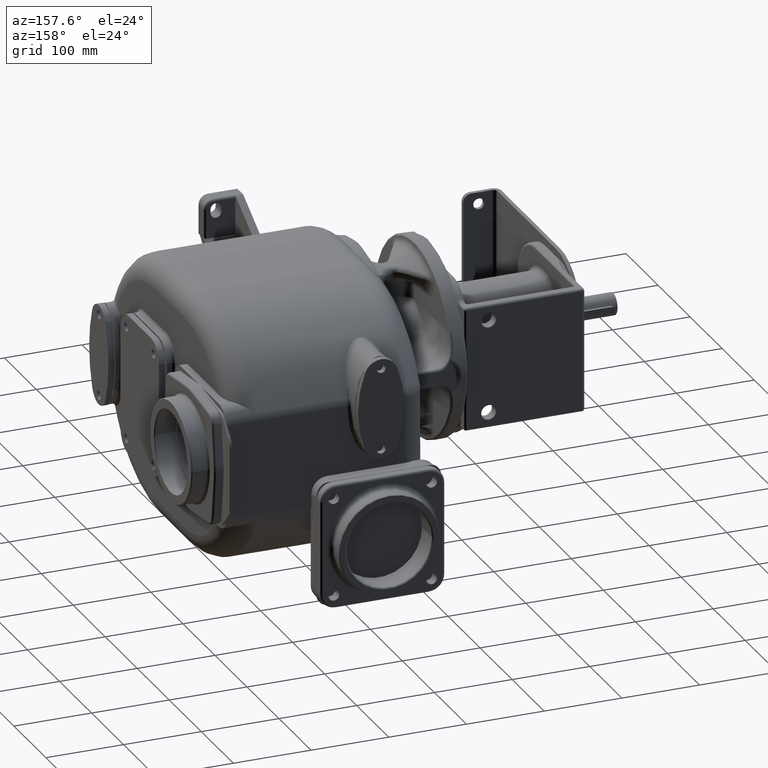
[diagram: clean part render]
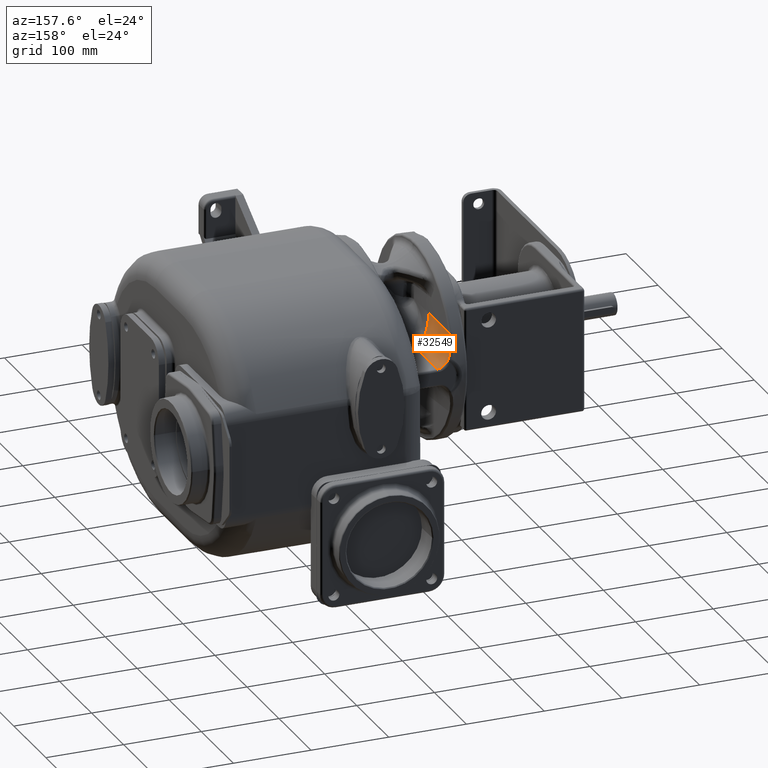
[diagram: same view with one face highlighted and labeled with its STEP entity id]
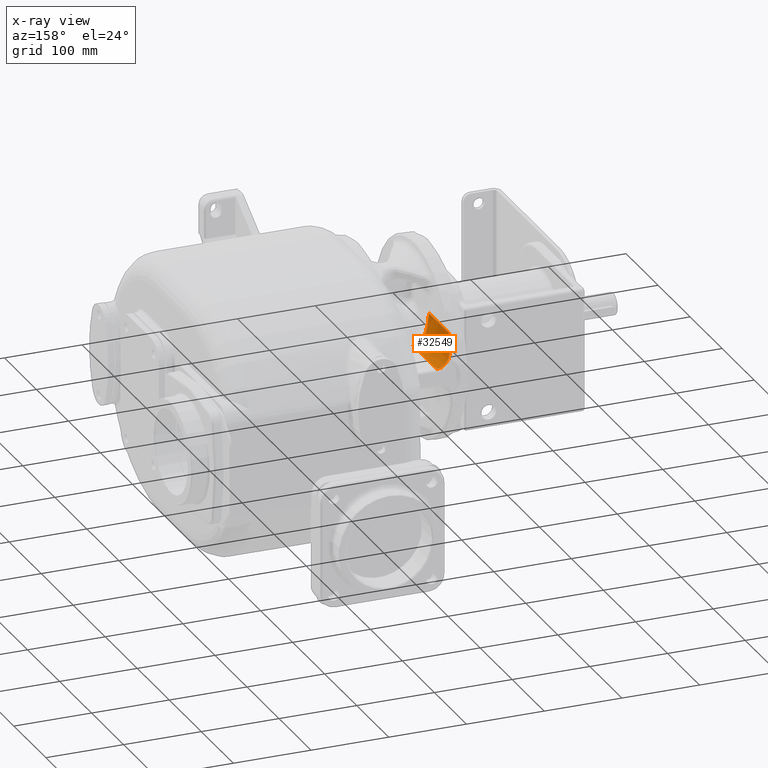
[diagram: x-ray of the same camera — body ghosted, the highlighted face saturated]
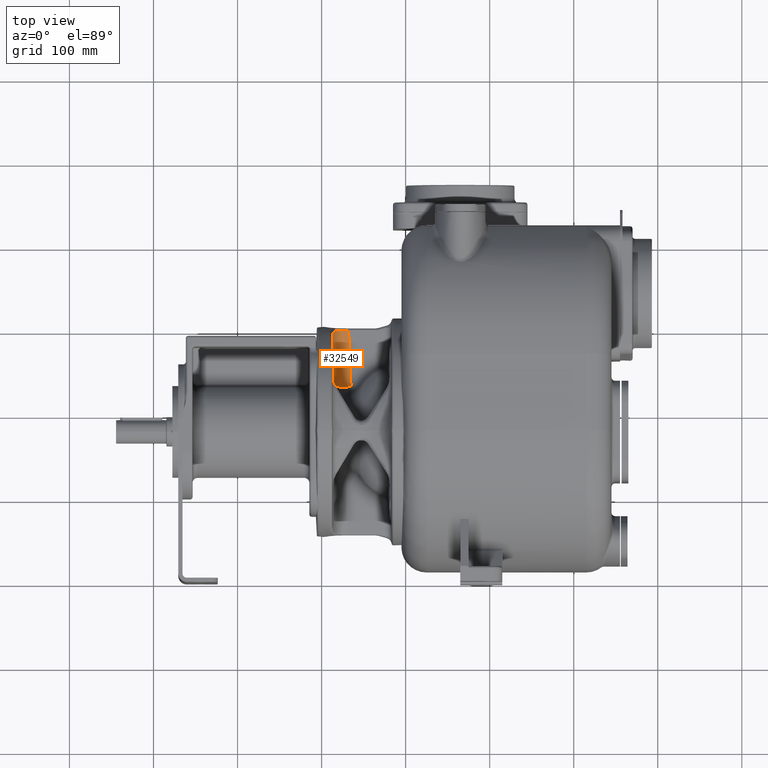
[diagram: same view with one face highlighted and labeled with its STEP entity id]
A machine part, auxiliary view. The second image highlights one B-rep face of the part: STEP entity #32549.
The next image is the same camera in x-ray: the body ghosted, the highlighted face saturated — about 0% of this face is hidden behind the body in this view.
A second angle (top view) of the same face is appended — the face is thin or edge-on in the first view.
In plain terms, the highlighted face is a freeform B-spline surface patch.
Its self-contained STEP definition (entity closure, byte-faithful):
#43=CARTESIAN_POINT('',(-1.849642544333E2,2.344774130516E2,5.387099244443E1));
#115=CARTESIAN_POINT('',(-1.700026951535E2,2.329926642686E2,1.550029634444E1));
#784=CARTESIAN_POINT('',(-1.815004487016E2,3.002087586596E2,1.938806853453E1));
#785=CARTESIAN_POINT('',(-1.813797151418E2,3.002093023329E2,1.918530023571E1));
#786=CARTESIAN_POINT('',(-1.811371634889E2,3.002103387973E2,1.879124872940E1));
#787=CARTESIAN_POINT('',(-1.807711934695E2,3.002117257564E2,1.823404023452E1));
#788=CARTESIAN_POINT('',(-1.804033957776E2,3.002129352064E2,1.770887215943E1));
#789=CARTESIAN_POINT('',(-1.800340977026E2,3.002139586463E2,1.721410746469E1));
#790=CARTESIAN_POINT('',(-1.796634159604E2,3.002147874221E2,1.674797237411E1));
#791=CARTESIAN_POINT('',(-1.792913154828E2,3.002154152648E2,1.630869671079E1));
#792=CARTESIAN_POINT('',(-1.789176179962E2,3.002158365640E2,1.589454630493E1));
#793=CARTESIAN_POINT('',(-1.785419673385E2,3.002160441825E2,1.550380770355E1));
#794=CARTESIAN_POINT('',(-1.781638673181E2,3.002160347467E2,1.513486386363E1));
#795=CARTESIAN_POINT('',(-1.777832445819E2,3.002158011562E2,1.478669522918E1));
#796=CARTESIAN_POINT('',(-1.773999075990E2,3.002153417012E2,1.445827560923E1));
#797=CARTESIAN_POINT('',(-1.770135565905E2,3.002146518236E2,1.414861202406E1));
#798=CARTESIAN_POINT('',(-1.766237905822E2,3.002137305708E2,1.385676401242E1));
#799=CARTESIAN_POINT('',(-1.762303058700E2,3.002125768145E2,1.358198714451E1));
#800=CARTESIAN_POINT('',(-1.758327119697E2,3.002111899270E2,1.332357861232E1));
#801=CARTESIAN_POINT('',(-1.754305455562E2,3.002095731919E2,1.308089819765E1));
#802=CARTESIAN_POINT('',(-1.750232744471E2,3.002077249354E2,1.285337750130E1));
#803=CARTESIAN_POINT('',(-1.746103946765E2,3.002056528373E2,1.264057102739E1));
#804=CARTESIAN_POINT('',(-1.741913560971E2,3.002033564837E2,1.244210769070E1));
#805=CARTESIAN_POINT('',(-1.737655762279E2,3.002008448242E2,1.225769823159E1));
#806=CARTESIAN_POINT('',(-1.733324519837E2,3.001981222791E2,1.208713864228E1));
#807=CARTESIAN_POINT('',(-1.728913212171E2,3.001951960448E2,1.193029461768E1));
#808=CARTESIAN_POINT('',(-1.724415228937E2,3.001920764967E2,1.178712449416E1));
#809=CARTESIAN_POINT('',(-1.719824080761E2,3.001887701914E2,1.165767747511E1));
#810=CARTESIAN_POINT('',(-1.715133560464E2,3.001852926599E2,1.154208378788E1));
#811=CARTESIAN_POINT('',(-1.710333094083E2,3.001816481841E2,1.144046047109E1));
#812=CARTESIAN_POINT('',(-1.705412383298E2,3.001778520152E2,1.135305898099E1));
#813=CARTESIAN_POINT('',(-1.700361544283E2,3.001739121150E2,1.128025152646E1));
#814=CARTESIAN_POINT('',(-1.695171070584E2,3.001698430424E2,1.122252004111E1));
#815=CARTESIAN_POINT('',(-1.689832412977E2,3.001656605077E2,1.118044825583E1));
#816=CARTESIAN_POINT('',(-1.684337909559E2,3.001613774907E2,1.115470577798E1));
#817=CARTESIAN_POINT('',(-1.680568191662E2,3.001584712130E2,1.114891853659E1));
#818=CARTESIAN_POINT('',(-1.678655197267E2,3.001570078687E2,1.114899490412E1));
#820=CARTESIAN_POINT('',(-1.700177710151E2,2.329948751001E2,1.550553421383E1));
#821=CARTESIAN_POINT('',(-1.698834687265E2,2.330331748299E2,1.545485863269E1));
#822=CARTESIAN_POINT('',(-1.696125427580E2,2.331103244067E2,1.535755232332E1));
#823=CARTESIAN_POINT('',(-1.691993582268E2,2.332275007651E2,1.522393291781E1));
#824=CARTESIAN_POINT('',(-1.687783053616E2,2.333463762247E2,1.510248772657E1));
#825=CARTESIAN_POINT('',(-1.683485060417E2,2.334666043713E2,1.499328341822E1));
#826=CARTESIAN_POINT('',(-1.679095613974E2,2.335899732249E2,1.489644353246E1));
#827=CARTESIAN_POINT('',(-1.674606631406E2,2.337168867957E2,1.481215262233E1));
#828=CARTESIAN_POINT('',(-1.670009530775E2,2.338474453453E2,1.474069911086E1));
#829=CARTESIAN_POINT('',(-1.665296149726E2,2.339816629418E2,1.468247261479E1));
#830=CARTESIAN_POINT('',(-1.660461455830E2,2.341206898534E2,1.463789847774E1));
#831=CARTESIAN_POINT('',(-1.655497423830E2,2.342645911820E2,1.460749426770E1));
#832=CARTESIAN_POINT('',(-1.652097599663E2,2.343638256649E2,1.459707030997E1));
#833=CARTESIAN_POINT('',(-1.650374075172E2,2.344142901760E2,1.459442474243E1));
#835=CARTESIAN_POINT('',(-1.700177710151E2,2.329948751001E2,1.550553421383E1));
#836=CARTESIAN_POINT('',(-1.701553511323E2,2.329921604677E2,1.555503217322E1));
#837=CARTESIAN_POINT('',(-1.704313613278E2,2.329872738945E2,1.565930180824E1));
#838=CARTESIAN_POINT('',(-1.708513092268E2,2.329823138521E2,1.583410294758E1));
#839=CARTESIAN_POINT('',(-1.712640953007E2,2.329777593557E2,1.602260672891E1));
#840=CARTESIAN_POINT('',(-1.716731801270E2,2.329741522104E2,1.622630632232E1));
#841=CARTESIAN_POINT('',(-1.720775511952E2,2.329713587798E2,1.644502177232E1));
#842=CARTESIAN_POINT('',(-1.724776945686E2,2.329694711193E2,1.667920206500E1));
#843=CARTESIAN_POINT('',(-1.728737900786E2,2.329685667124E2,1.692924313225E1));
#844=CARTESIAN_POINT('',(-1.732662948014E2,2.329686788012E2,1.719577573793E1));
#845=CARTESIAN_POINT('',(-1.736557633459E2,2.329697945456E2,1.747963316031E1));
#846=CARTESIAN_POINT('',(-1.740426088244E2,2.329719400766E2,1.778168196810E1));
#847=CARTESIAN_POINT('',(-1.744271116026E2,2.329751752171E2,1.810280516409E1));
#848=CARTESIAN_POINT('',(-1.748095489966E2,2.329795533071E2,1.844399900391E1));
#849=CARTESIAN_POINT('',(-1.751903093668E2,2.329851098698E2,1.880650690464E1));
#850=CARTESIAN_POINT('',(-1.755696493052E2,2.329918927046E2,1.919161279711E1));
#851=CARTESIAN_POINT('',(-1.759478631702E2,2.329999736625E2,1.960081052875E1));
#852=CARTESIAN_POINT('',(-1.763250636617E2,2.330094291118E2,2.003557829642E1));
#853=CARTESIAN_POINT('',(-1.767014717161E2,2.330203463437E2,2.049770999663E1));
#854=CARTESIAN_POINT('',(-1.770771200133E2,2.330328185614E2,2.098898160603E1));
#855=CARTESIAN_POINT('',(-1.774523218359E2,2.330469598599E2,2.151178307154E1));
#856=CARTESIAN_POINT('',(-1.778271740890E2,2.330628939374E2,2.206854316923E1));
#857=CARTESIAN_POINT('',(-1.782013489594E2,2.330807408274E2,2.266133832290E1));
#858=CARTESIAN_POINT('',(-1.785742492198E2,2.331006144083E2,2.329195060954E1));
#859=CARTESIAN_POINT('',(-1.789460964028E2,2.331226861672E2,2.396380230766E1));
#860=CARTESIAN_POINT('',(-1.793169592423E2,2.331471485230E2,2.468060938618E1));
#861=CARTESIAN_POINT('',(-1.796865827492E2,2.331742013411E2,2.544601172975E1));
#862=CARTESIAN_POINT('',(-1.800544051659E2,2.332040457240E2,2.626346476073E1));
#863=CARTESIAN_POINT('',(-1.804203163614E2,2.332369496177E2,2.713800692428E1));
#864=CARTESIAN_POINT('',(-1.807839135765E2,2.332732017662E2,2.807487666706E1));
#865=CARTESIAN_POINT('',(-1.811444151357E2,2.333130968560E2,2.907917052401E1));
#866=CARTESIAN_POINT('',(-1.815008869152E2,2.333569547198E2,3.015636207416E1));
#867=CARTESIAN_POINT('',(-1.818524144723E2,2.334051499776E2,3.131298284006E1));
#868=CARTESIAN_POINT('',(-1.821976720075E2,2.334580652228E2,3.255543922888E1));
#869=CARTESIAN_POINT('',(-1.825350440450E2,2.335160872910E2,3.389002320981E1));
#870=CARTESIAN_POINT('',(-1.828639408401E2,2.335798799807E2,3.532900318141E1));
#871=CARTESIAN_POINT('',(-1.831830074315E2,2.336501416915E2,3.688479185307E1));
#872=CARTESIAN_POINT('',(-1.834902112069E2,2.337276242525E2,3.857036454555E1));
#873=CARTESIAN_POINT('',(-1.837810585951E2,2.338125429626E2,4.038679980908E1));
#874=CARTESIAN_POINT('',(-1.840515248007E2,2.339050994117E2,4.233523066529E1));
#875=CARTESIAN_POINT('',(-1.842976679215E2,2.340053925476E2,4.441488749218E1));
#876=CARTESIAN_POINT('',(-1.845152177942E2,2.341130454439E2,4.661569909578E1));
#877=CARTESIAN_POINT('',(-1.847011336452E2,2.342276871634E2,4.892853741218E1));
#878=CARTESIAN_POINT('',(-1.848532850647E2,2.343489741309E2,5.134541024350E1));
#879=CARTESIAN_POINT('',(-1.849312125874E2,2.344338954039E2,5.301834248114E1));
#880=CARTESIAN_POINT('',(-1.849642547482E2,2.344774138560E2,5.387100050187E1));
#882=CARTESIAN_POINT('',(-1.873510050882E2,2.909093905532E2,5.120001611979E1));
#883=CARTESIAN_POINT('',(-1.873512618564E2,2.911751494826E2,5.063602088547E1));
#884=CARTESIAN_POINT('',(-1.873459352744E2,2.916963074307E2,4.950772539230E1));
#885=CARTESIAN_POINT('',(-1.873191631402E2,2.924481733113E2,4.781290603119E1));
#886=CARTESIAN_POINT('',(-1.872725066652E2,2.931668864269E2,4.612471162246E1));
#887=CARTESIAN_POINT('',(-1.872050720600E2,2.938508040169E2,4.444958905438E1));
#888=CARTESIAN_POINT('',(-1.871162251279E2,2.944982781768E2,4.279497376730E1));
#889=CARTESIAN_POINT('',(-1.870056455413E2,2.951081088072E2,4.116826342328E1));
#890=CARTESIAN_POINT('',(-1.868733760951E2,2.956794168906E2,3.957700293150E1));
#891=CARTESIAN_POINT('',(-1.867199380005E2,2.962115584567E2,3.802917859991E1));
#892=CARTESIAN_POINT('',(-1.865461082090E2,2.967049240569E2,3.653065065301E1));
#893=CARTESIAN_POINT('',(-1.863530100827E2,2.971602225971E2,3.508680542832E1));
#894=CARTESIAN_POINT('',(-1.861423727654E2,2.975780654096E2,3.370392067465E1));
#895=CARTESIAN_POINT('',(-1.859159290255E2,2.979601740815E2,3.238494606716E1));
#896=CARTESIAN_POINT('',(-1.856748335483E2,2.983094736833E2,3.112825332471E1));
#897=CARTESIAN_POINT('',(-1.854204131358E2,2.986284487948E2,2.993300939622E1));
#898=CARTESIAN_POINT('',(-1.851539917761E2,2.989194938974E2,2.879798806453E1));
#899=CARTESIAN_POINT('',(-1.848768007952E2,2.991849368207E2,2.772143530748E1));
#900=CARTESIAN_POINT('',(-1.845900192369E2,2.994269744360E2,2.670139811177E1));
#901=CARTESIAN_POINT('',(-1.842947616961E2,2.996476482538E2,2.573577161656E1));
#902=CARTESIAN_POINT('',(-1.839920951282E2,2.998488311173E2,2.482241598145E1));
#903=CARTESIAN_POINT('',(-1.836830786836E2,3.000322493527E2,2.395929180779E1));
#904=CARTESIAN_POINT('',(-1.833687331630E2,3.001994672627E2,2.314433464956E1));
#905=CARTESIAN_POINT('',(-1.831560148305E2,3.003011961277E2,2.263121938703E1));
#906=CARTESIAN_POINT('',(-1.830491337892E2,3.003497824558E2,2.238214819686E1));
#908=CARTESIAN_POINT('',(-1.830491337892E2,3.003497824558E2,2.238214819686E1));
#909=CARTESIAN_POINT('',(-1.830214762001E2,3.003623534440E2,2.231769708499E1));
#910=CARTESIAN_POINT('',(-1.829654371268E2,3.003849263536E2,2.218869444500E1));
#911=CARTESIAN_POINT('',(-1.828790539428E2,3.004110462001E2,2.199468832572E1));
#912=CARTESIAN_POINT('',(-1.827906055800E2,3.004292471975E2,2.180090034831E1));
#913=CARTESIAN_POINT('',(-1.827002637887E2,3.004394407298E2,2.160780493410E1));
#914=CARTESIAN_POINT('',(-1.826082382288E2,3.004416096147E2,2.141591613309E1));
#915=CARTESIAN_POINT('',(-1.825147458758E2,3.004357743149E2,2.122572246951E1));
#916=CARTESIAN_POINT('',(-1.824200179608E2,3.004220139235E2,2.103769911394E1));
#917=CARTESIAN_POINT('',(-1.823243058404E2,3.004004684562E2,2.085231682042E1));
#918=CARTESIAN_POINT('',(-1.822278366486E2,3.003713013797E2,2.066996374984E1));
#919=CARTESIAN_POINT('',(-1.821632583995E2,3.003469669001E2,2.055080537165E1));
#920=CARTESIAN_POINT('',(-1.821308874422E2,3.003335983777E2,2.049178284915E1));
#922=CARTESIAN_POINT('',(-1.821308874422E2,3.003335983777E2,2.049178284915E1));
#923=CARTESIAN_POINT('',(-1.820897010361E2,3.003165885997E2,2.041668722260E1));
#924=CARTESIAN_POINT('',(-1.820069384022E2,3.002861182625E2,2.026697331283E1));
#925=CARTESIAN_POINT('',(-1.818814780663E2,3.002508633381E2,2.004365823210E1));
#926=CARTESIAN_POINT('',(-1.817550796272E2,3.002260320841E2,1.982233735916E1));
#927=CARTESIAN_POINT('',(-1.816279825908E2,3.002115002010E2,1.960345794874E1));
#928=CARTESIAN_POINT('',(-1.815430118173E2,3.002085670338E2,1.945955226861E1));
#929=CARTESIAN_POINT('',(-1.815004487016E2,3.002087586596E2,1.938806853453E1));
#2191=CARTESIAN_POINT('',(-1.849642544333E2,2.344774130516E2,5.387099244443E1));
#2192=CARTESIAN_POINT('',(-1.849731995182E2,2.347287982112E2,5.385952116343E1));
#2193=CARTESIAN_POINT('',(-1.850091922251E2,2.357363138500E2,5.381358650429E1));
#2194=CARTESIAN_POINT('',(-1.850737189799E2,2.375155547059E2,5.373218005528E1));
#2195=CARTESIAN_POINT('',(-1.851595279728E2,2.398318442614E2,5.362599031095E1));
#2196=CARTESIAN_POINT('',(-1.852489523543E2,2.421980530439E2,5.351716574289E1));
#2197=CARTESIAN_POINT('',(-1.853421235928E2,2.446175385687E2,5.340554164021E1));
#2198=CARTESIAN_POINT('',(-1.854391829042E2,2.470938118899E2,5.329091124783E1));
#2199=CARTESIAN_POINT('',(-1.855402835167E2,2.496305540184E2,5.317306991860E1));
#2200=CARTESIAN_POINT('',(-1.856455907645E2,2.522316294117E2,5.305180180851E1));
#2201=CARTESIAN_POINT('',(-1.857552828747E2,2.549011017936E2,5.292688241661E1));
#2202=CARTESIAN_POINT('',(-1.858695516659E2,2.576432511297E2,5.279807664600E1));
#2203=CARTESIAN_POINT('',(-1.859886033877E2,2.604625923014E2,5.266513801327E1));
#2204=CARTESIAN_POINT('',(-1.861126596405E2,2.633638953618E2,5.252780743959E1));
#2205=CARTESIAN_POINT('',(-1.862419583936E2,2.663522073941E2,5.238581205828E1));
#2206=CARTESIAN_POINT('',(-1.863767551104E2,2.694328762498E2,5.223886390302E1));
#2207=CARTESIAN_POINT('',(-1.865173239908E2,2.726115763688E2,5.208665849911E1));
#2208=CARTESIAN_POINT('',(-1.866639593721E2,2.758943375481E2,5.192887330735E1));
#2209=CARTESIAN_POINT('',(-1.868169772873E2,2.792875765876E2,5.176516601620E1));
#2210=CARTESIAN_POINT('',(-1.869767172707E2,2.827981338026E2,5.159517261568E1));
#2211=CARTESIAN_POINT('',(-1.871435441195E2,2.864333074357E2,5.141850546012E1));
#2212=CARTESIAN_POINT('',(-1.872692725466E2,2.891509041017E2,5.128596190363E1));
#2213=CARTESIAN_POINT('',(-1.873392959690E2,2.906576271124E2,5.121232457723E1));
#2214=CARTESIAN_POINT('',(-1.873510050882E2,2.909093905532E2,5.120001611979E1));
#3747=CARTESIAN_POINT('',(-1.650374075165E2,2.344142901764E2,1.459442474241E1));
#3754=CARTESIAN_POINT('',(-1.650374075165E2,2.344142901764E2,1.459442474241E1));
#3755=CARTESIAN_POINT('',(-1.650583796709E2,2.350000826745E2,1.456372465846E1));
#3756=CARTESIAN_POINT('',(-1.651075881689E2,2.363626056695E2,1.449231785407E1));
#3757=CARTESIAN_POINT('',(-1.651869371341E2,2.385180199956E2,1.437935737580E1));
#3758=CARTESIAN_POINT('',(-1.652763616977E2,2.408982023166E2,1.425461730607E1));
#3759=CARTESIAN_POINT('',(-1.653695328857E2,2.433310685888E2,1.412711618745E1));
#3760=CARTESIAN_POINT('',(-1.654665922112E2,2.458201508343E2,1.399666891451E1));
#3761=CARTESIAN_POINT('',(-1.655676928198E2,2.483691498840E2,1.386308153492E1));
#3762=CARTESIAN_POINT('',(-1.656730000687E2,2.509819496770E2,1.372615050006E1));
#3763=CARTESIAN_POINT('',(-1.657826921786E2,2.536626328277E2,1.358566184917E1));
#3764=CARTESIAN_POINT('',(-1.658969609699E2,2.564154976563E2,1.344139031684E1));
#3765=CARTESIAN_POINT('',(-1.660160126917E2,2.592450768404E2,1.329309835550E1));
#3766=CARTESIAN_POINT('',(-1.661400689445E2,2.621561576775E2,1.314053507351E1));
#3767=CARTESIAN_POINT('',(-1.662693676977E2,2.651538039472E2,1.298343508944E1));
#3768=CARTESIAN_POINT('',(-1.664041644145E2,2.682433796581E2,1.282151728750E1));
#3769=CARTESIAN_POINT('',(-1.665447332949E2,2.714305748776E2,1.265448346391E1));
#3770=CARTESIAN_POINT('',(-1.666913686763E2,2.747214345159E2,1.248201681833E1));
#3771=CARTESIAN_POINT('',(-1.668443865911E2,2.781223899850E2,1.230378029476E1));
#3772=CARTESIAN_POINT('',(-1.670041265763E2,2.816402957385E2,1.211941466649E1));
#3773=CARTESIAN_POINT('',(-1.671709534181E2,2.852824636614E2,1.192853673387E1));
#3774=CARTESIAN_POINT('',(-1.673452596971E2,2.890567143421E2,1.173073663724E1));
#3775=CARTESIAN_POINT('',(-1.675274675591E2,2.929714105480E2,1.152557610252E1));
#3776=CARTESIAN_POINT('',(-1.677016952343E2,2.966871134714E2,1.133084436383E1));
#3777=CARTESIAN_POINT('',(-1.678154732200E2,2.990988368801E2,1.120445129573E1));
#3778=CARTESIAN_POINT('',(-1.678655197267E2,3.001570078687E2,1.114899490412E1));
#29982=VERTEX_POINT('',#3747);
#30371=CARTESIAN_POINT('',(-1.678655197267E2,3.001570078687E2,
1.114899490412E1));
#30373=VERTEX_POINT('',#30371);
#30398=CARTESIAN_POINT('',(-1.873510050959E2,2.909093905852E2,
5.120001612751E1));
#30399=VERTEX_POINT('',#30398);
#30625=VERTEX_POINT('',#43);
#30640=VERTEX_POINT('',#115);
#30662=VERTEX_POINT('',#784);
#30663=VERTEX_POINT('',#922);
#30664=VERTEX_POINT('',#908);
#32271=CARTESIAN_POINT('',(-1.645326928512E2,2.189445729027E2,
1.540515827086E1));
#32272=CARTESIAN_POINT('',(-1.827978225217E2,2.184162113954E2,
1.543284852412E1));
#32273=CARTESIAN_POINT('',(-1.845052835463E2,2.204146047738E2,
5.450951541458E1));
#32274=CARTESIAN_POINT('',(-1.645524381880E2,2.196252794970E2,
1.536948394991E1));
#32275=CARTESIAN_POINT('',(-1.828267321601E2,2.190900851904E2,
1.539753229500E1));
#32276=CARTESIAN_POINT('',(-1.845250288831E2,2.210883793339E2,
5.447898090565E1));
#32277=CARTESIAN_POINT('',(-1.645929296132E2,2.209956682321E2,
1.529766491955E1));
#32278=CARTESIAN_POINT('',(-1.828857168751E2,2.204470230648E2,
1.532641819438E1));
#32279=CARTESIAN_POINT('',(-1.845655203083E2,2.224451701852E2,
5.441751068365E1));
#32280=CARTESIAN_POINT('',(-1.646562185257E2,2.230650565155E2,
1.518921287514E1));
#32281=CARTESIAN_POINT('',(-1.829769710797E2,2.224970009905E2,
1.521898340371E1));
#32282=CARTESIAN_POINT('',(-1.846288092208E2,2.244950738121E2,
5.432464326387E1));
#32283=CARTESIAN_POINT('',(-1.647224942243E2,2.251636751653E2,
1.507922893214E1));
#32284=CARTESIAN_POINT('',(-1.830715489136E2,2.245768356449E2,
1.510998388820E1));
#32285=CARTESIAN_POINT('',(-1.846950849194E2,2.265749717988E2,
5.423037085119E1));
#32286=CARTESIAN_POINT('',(-1.647918157590E2,2.272939896011E2,
1.496758388339E1));
#32287=CARTESIAN_POINT('',(-1.831694524699E2,2.266889792387E2,
1.499929113292E1));
#32288=CARTESIAN_POINT('',(-1.847644064541E2,2.286873091688E2,
5.413453535999E1));
#32289=CARTESIAN_POINT('',(-1.648642551172E2,2.294586888239E2,
1.485413680430E1));
#32290=CARTESIAN_POINT('',(-1.832707020458E2,2.288361060765E2,
1.488676498351E1));
#32291=CARTESIAN_POINT('',(-1.848368458123E2,2.308347530855E2,
5.403696985618E1));
#32292=CARTESIAN_POINT('',(-1.649398922202E2,2.316605179603E2,
1.473874382890E1));
#32293=CARTESIAN_POINT('',(-1.833753295833E2,2.310209465440E2,
1.477226234652E1));
#32294=CARTESIAN_POINT('',(-1.849124829153E2,2.330200268950E2,
5.393750645167E1));
#32295=CARTESIAN_POINT('',(-1.650188169777E2,2.339023447114E2,
1.462125466734E1));
#32296=CARTESIAN_POINT('',(-1.834833809486E2,2.332463532856E2,
1.465563372120E1));
#32297=CARTESIAN_POINT('',(-1.849914076728E2,2.352459763431E2,
5.383597294324E1));
#32298=CARTESIAN_POINT('',(-1.651011287990E2,2.361871450673E2,
1.450151335458E1));
#32299=CARTESIAN_POINT('',(-1.835949149521E2,2.355152872016E2,
1.453672393332E1));
#32300=CARTESIAN_POINT('',(-1.850737194941E2,2.375155555987E2,
5.373219328663E1));
#32301=CARTESIAN_POINT('',(-1.651869371342E2,2.385180199956E2,
1.437935737581E1));
#32302=CARTESIAN_POINT('',(-1.837100037040E2,2.378308341844E2,
1.441537125813E1));
#32303=CARTESIAN_POINT('',(-1.851595278293E2,2.398318440127E2,
5.362598661704E1));
#32304=CARTESIAN_POINT('',(-1.652763616976E2,2.408982023166E2,
1.425461730607E1));
#32305=CARTESIAN_POINT('',(-1.838287325506E2,2.401962120967E2,
1.429140705458E1));
#32306=CARTESIAN_POINT('',(-1.852489523927E2,2.421980531109E2,
5.351716672971E1));
#32307=CARTESIAN_POINT('',(-1.653695328857E2,2.433310685888E2,
1.412711618745E1));
#32308=CARTESIAN_POINT('',(-1.839512002639E2,2.426147827145E2,
1.416465513945E1));
#32309=CARTESIAN_POINT('',(-1.853421235808E2,2.446175385483E2,
5.340554133071E1));
#32310=CARTESIAN_POINT('',(-1.654665922112E2,2.458201508344E2,
1.399666891451E1));
#32311=CARTESIAN_POINT('',(-1.840775192478E2,2.450900635055E2,
1.403493117010E1));
#32312=CARTESIAN_POINT('',(-1.854391829063E2,2.470938118937E2,
5.329091129784E1));
#32313=CARTESIAN_POINT('',(-1.655676928198E2,2.483691498840E2,
1.386308153492E1));
#32314=CARTESIAN_POINT('',(-1.842078158495E2,2.476257410108E2,
1.390204194307E1));
#32315=CARTESIAN_POINT('',(-1.855402835149E2,2.496305540155E2,
5.317306986874E1));
#32316=CARTESIAN_POINT('',(-1.656730000687E2,2.509819496770E2,
1.372615050006E1));
#32317=CARTESIAN_POINT('',(-1.843422307441E2,2.502256851738E2,
1.376578464322E1));
#32318=CARTESIAN_POINT('',(-1.856455907638E2,2.522316294107E2,
5.305180178641E1));
#32319=CARTESIAN_POINT('',(-1.657826921786E2,2.536626328277E2,
1.358566184917E1));
#32320=CARTESIAN_POINT('',(-1.844809194084E2,2.528939649281E2,
1.362594602680E1));
#32321=CARTESIAN_POINT('',(-1.857552828737E2,2.549011017920E2,
5.292688238677E1));
#32322=CARTESIAN_POINT('',(-1.658969609699E2,2.564154976563E2,
1.344139031684E1));
#32323=CARTESIAN_POINT('',(-1.846240526939E2,2.556348652403E2,
1.348230152820E1));
#32324=CARTESIAN_POINT('',(-1.858695516650E2,2.576432511283E2,
5.279807661830E1));
#32325=CARTESIAN_POINT('',(-1.660160126917E2,2.592450768404E2,
1.329309835550E1));
#32326=CARTESIAN_POINT('',(-1.847718175073E2,2.584529057706E2,
1.333461428208E1));
#32327=CARTESIAN_POINT('',(-1.859886033868E2,2.604625923E2,5.266513798497E1));
#32328=CARTESIAN_POINT('',(-1.661400689445E2,2.621561576775E2,
1.314053507351E1));
#32329=CARTESIAN_POINT('',(-1.849244175977E2,2.613528611379E2,
1.318263406126E1));
#32330=CARTESIAN_POINT('',(-1.861126596396E2,2.633638953604E2,
5.252780741144E1));
#32331=CARTESIAN_POINT('',(-1.662693676977E2,2.651538039472E2,
1.298343508944E1));
#32332=CARTESIAN_POINT('',(-1.850820744475E2,2.643397827833E2,
1.302609613093E1));
#32333=CARTESIAN_POINT('',(-1.862419583928E2,2.663522073927E2,
5.238581203008E1));
#32334=CARTESIAN_POINT('',(-1.664041644145E2,2.682433796581E2,
1.282151728750E1));
#32335=CARTESIAN_POINT('',(-1.852450282815E2,2.674190227145E2,
1.286472000425E1));
#32336=CARTESIAN_POINT('',(-1.863767551096E2,2.694328762484E2,
5.223886387479E1));
#32337=CARTESIAN_POINT('',(-1.665447332949E2,2.714305748776E2,
1.265448346391E1));
#32338=CARTESIAN_POINT('',(-1.854135392037E2,2.705962593327E2,
1.269820808883E1));
#32339=CARTESIAN_POINT('',(-1.865173239900E2,2.726115763673E2,
5.208665847100E1));
#32340=CARTESIAN_POINT('',(-1.666913686763E2,2.747214345159E2,
1.248201681833E1));
#32341=CARTESIAN_POINT('',(-1.855878885058E2,2.738775262082E2,
1.252624417866E1));
#32342=CARTESIAN_POINT('',(-1.866639593714E2,2.758943375468E2,
5.192887327869E1));
#32343=CARTESIAN_POINT('',(-1.668443865911E2,2.781223899850E2,
1.230378029476E1));
#32344=CARTESIAN_POINT('',(-1.857683801429E2,2.772692437308E2,
1.234849179534E1));
#32345=CARTESIAN_POINT('',(-1.868169772862E2,2.792875765855E2,
5.176516598968E1));
#32346=CARTESIAN_POINT('',(-1.670041265763E2,2.816402957385E2,
1.211941466649E1));
#32347=CARTESIAN_POINT('',(-1.859553424818E2,2.807782556364E2,
1.216459227389E1));
#32348=CARTESIAN_POINT('',(-1.869767172714E2,2.827981338036E2,
5.159517258066E1));
#32349=CARTESIAN_POINT('',(-1.671709534181E2,2.852824636614E2,
1.192853673387E1));
#32350=CARTESIAN_POINT('',(-1.861491299459E2,2.844118633965E2,
1.197416296040E1));
#32351=CARTESIAN_POINT('',(-1.871435441132E2,2.864333074245E2,
5.141850545852E1));
#32352=CARTESIAN_POINT('',(-1.673452596971E2,2.890567143421E2,
1.173073663724E1));
#32353=CARTESIAN_POINT('',(-1.863501255684E2,2.881778774588E2,
1.177679452664E1));
#32354=CARTESIAN_POINT('',(-1.873178503922E2,2.902009048132E2,
5.123475077734E1));
#32355=CARTESIAN_POINT('',(-1.675274675591E2,2.929714105480E2,
1.152557610252E1));
#32356=CARTESIAN_POINT('',(-1.865587426066E2,2.920846507451E2,
1.157204921455E1));
#32357=CARTESIAN_POINT('',(-1.875000582542E2,2.941092759612E2,
5.104346660220E1));
#32358=CARTESIAN_POINT('',(-1.677180318849E2,2.970355204645E2,
1.131258512703E1));
#32359=CARTESIAN_POINT('',(-1.867754277472E2,2.961411418524E2,
1.135945752393E1));
#32360=CARTESIAN_POINT('',(-1.876906225800E2,2.981673766873E2,
5.084417961354E1));
#32361=CARTESIAN_POINT('',(-1.679174396105E2,3.012585982331E2,
1.109126299944E1));
#32362=CARTESIAN_POINT('',(-1.870006599072E2,3.003568957175E2,
1.113851922586E1));
#32363=CARTESIAN_POINT('',(-1.878900303056E2,3.023847492662E2,
5.063638585517E1));
#32364=CARTESIAN_POINT('',(-1.681262234407E2,3.056510696438E2,
1.086106332724E1));
#32365=CARTESIAN_POINT('',(-1.872349653123E2,3.047423288932E2,
1.090868841192E1));
#32366=CARTESIAN_POINT('',(-1.880988141357E2,3.067718077866E2,
5.041953647761E1));
#32367=CARTESIAN_POINT('',(-1.683447702177E2,3.102202146409E2,
1.062160458472E1));
#32368=CARTESIAN_POINT('',(-1.874787030369E2,3.093047181987E2,
1.066958372020E1));
#32369=CARTESIAN_POINT('',(-1.883173609128E2,3.113358253277E2,
5.019323635743E1));
#32370=CARTESIAN_POINT('',(-1.685729301599E2,3.149621684388E2,
1.037308931671E1));
#32371=CARTESIAN_POINT('',(-1.877316382770E2,3.140402103097E2,
1.042140709485E1));
#32372=CARTESIAN_POINT('',(-1.885455208550E2,3.160729410812E2,
4.995764462746E1));
#32373=CARTESIAN_POINT('',(-1.688100915633E2,3.198638138224E2,
1.011620496733E1));
#32374=CARTESIAN_POINT('',(-1.879930440348E2,3.189357050010E2,
1.016484508959E1));
#32375=CARTESIAN_POINT('',(-1.887826822584E2,3.209700451273E2,
4.971338978073E1));
#32376=CARTESIAN_POINT('',(-1.690556834251E2,3.249133079380E2,
9.851572194222E0));
#32377=CARTESIAN_POINT('',(-1.882622637602E2,3.239793664221E2,
9.900517995050E0));
#32378=CARTESIAN_POINT('',(-1.890282741202E2,3.260152936815E2,
4.946104928017E1));
#32379=CARTESIAN_POINT('',(-1.693095919832E2,3.301084509524E2,
9.579306285780E0));
#32380=CARTESIAN_POINT('',(-1.885391578011E2,3.291689861930E2,
9.628541547535E0));
#32381=CARTESIAN_POINT('',(-1.892821826783E2,3.312064744253E2,
4.920072635660E1));
#32382=CARTESIAN_POINT('',(-1.695720535823E2,3.354542425417E2,
9.299145220076E0));
#32383=CARTESIAN_POINT('',(-1.888239724618E2,3.345095474124E2,
9.348654593905E0));
#32384=CARTESIAN_POINT('',(-1.895446442774E2,3.365485691013E2,
4.893216551640E1));
#32385=CARTESIAN_POINT('',(-1.698433334551E2,3.409562337457E2,
9.010798079441E0));
#32386=CARTESIAN_POINT('',(-1.891169852021E2,3.400065850216E2,
9.060567060170E0));
#32387=CARTESIAN_POINT('',(-1.898159241502E2,3.420471116384E2,
4.865508346050E1));
#32388=CARTESIAN_POINT('',(-1.701237011818E2,3.466200265319E2,
8.713971277197E0));
#32389=CARTESIAN_POINT('',(-1.894184777672E2,3.456656858604E2,
8.763986152468E0));
#32390=CARTESIAN_POINT('',(-1.900962918769E2,3.477076880330E2,
4.836919410536E1));
#32391=CARTESIAN_POINT('',(-1.704134373179E2,3.524514101569E2,
8.408361411263E0));
#32392=CARTESIAN_POINT('',(-1.897287432731E2,3.514926248579E2,
8.458609219592E0));
#32393=CARTESIAN_POINT('',(-1.903860280129E2,3.535360725568E2,
4.807420167811E1));
#32394=CARTESIAN_POINT('',(-1.707128318205E2,3.584563305559E2,
8.093656868381E0));
#32395=CARTESIAN_POINT('',(-1.900480844152E2,3.574933344123E2,
8.144125357721E0));
#32396=CARTESIAN_POINT('',(-1.906854225156E2,3.595381971083E2,
4.776980221232E1));
#32397=CARTESIAN_POINT('',(-1.710221847593E2,3.646409058849E2,
7.769537009579E0));
#32398=CARTESIAN_POINT('',(-1.903768141494E2,3.636739198848E2,
7.820214598438E0));
#32399=CARTESIAN_POINT('',(-1.909947754544E2,3.657201666915E2,
4.745568272238E1));
#32400=CARTESIAN_POINT('',(-1.713418064826E2,3.710114309367E2,
7.435671938744E0));
#32401=CARTESIAN_POINT('',(-1.907152557964E2,3.700406639777E2,
7.486547679266E0));
#32402=CARTESIAN_POINT('',(-1.913143971776E2,3.720882637788E2,
4.713152094325E1));
#32403=CARTESIAN_POINT('',(-1.716720179567E2,3.775743848832E2,
7.091722096874E0));
#32404=CARTESIAN_POINT('',(-1.910637433342E2,3.766000344387E2,
7.142785639911E0));
#32405=CARTESIAN_POINT('',(-1.916446086518E2,3.786489560010E2,
4.679698490477E1));
#32406=CARTESIAN_POINT('',(-1.720131510691E2,3.843364381889E2,
6.737337899730E0));
#32407=CARTESIAN_POINT('',(-1.914226216582E2,3.833586909392E2,
6.788579461782E0));
#32408=CARTESIAN_POINT('',(-1.919857417642E2,3.854089030133E2,
4.645173255054E1));
#32409=CARTESIAN_POINT('',(-1.723655489443E2,3.913044596693E2,
6.372159367944E0));
#32410=CARTESIAN_POINT('',(-1.917922468596E2,3.903234920986E2,
6.423569699871E0));
#32411=CARTESIAN_POINT('',(-1.923381396394E2,3.923749635073E2,
4.609541135188E1));
#32412=CARTESIAN_POINT('',(-1.727295662698E2,3.984855236646E2,
5.995815751057E0));
#32413=CARTESIAN_POINT('',(-1.921729865181E2,3.975015026258E2,
6.047386108471E0));
#32414=CARTESIAN_POINT('',(-1.927021569649E2,3.995542023429E2,
4.572765791803E1));
#32415=CARTESIAN_POINT('',(-1.731055696375E2,4.058869174202E2,
5.607925140731E0));
#32416=CARTESIAN_POINT('',(-1.925652200147E2,4.049000006689E2,
5.659647256001E0));
#32417=CARTESIAN_POINT('',(-1.930781603326E2,4.069538978875E2,
4.534809759775E1));
#32418=CARTESIAN_POINT('',(-1.734939379077E2,4.135161488484E2,
5.208094063941E0));
#32419=CARTESIAN_POINT('',(-1.929693388712E2,4.125264855486E2,
5.259960119724E0));
#32420=CARTESIAN_POINT('',(-1.934665286028E2,4.145815497417E2,
4.495634406277E1));
#32421=CARTESIAN_POINT('',(-1.738950625931E2,4.213809546042E2,
4.795917059787E0));
#32422=CARTESIAN_POINT('',(-1.933857471139E2,4.203886858050E2,
4.847919664006E0));
#32423=CARTESIAN_POINT('',(-1.938676532882E2,4.224448867776E2,
4.455199887678E1));
#32424=CARTESIAN_POINT('',(-1.743093482485E2,4.294893082050E2,
4.370976253928E0));
#32425=CARTESIAN_POINT('',(-1.938148616442E2,4.284945672922E2,
4.423108416129E0));
#32426=CARTESIAN_POINT('',(-1.942819389436E2,4.305518752269E2,
4.413465106303E1));
#32427=CARTESIAN_POINT('',(-1.747372128508E2,4.378494279092E2,
3.932840945689E0));
#32428=CARTESIAN_POINT('',(-1.942571126032E2,4.368523410318E2,
3.985096054685E0));
#32429=CARTESIAN_POINT('',(-1.947098035458E2,4.389107265276E2,
4.370387668558E1));
#32430=CARTESIAN_POINT('',(-1.751790881936E2,4.464697848206E2,
3.481067183339E0));
#32431=CARTESIAN_POINT('',(-1.947129437522E2,4.454704712937E2,
3.533438986091E0));
#32432=CARTESIAN_POINT('',(-1.951516788886E2,4.475299053991E2,
4.325923842002E1));
#32433=CARTESIAN_POINT('',(-1.756354203155E2,4.553591116109E2,
3.015197306938E0));
#32434=CARTESIAN_POINT('',(-1.951828128905E2,4.543576842963E2,
3.067679888605E0));
#32435=CARTESIAN_POINT('',(-1.956080110106E2,4.564181385378E2,
4.280028509305E1));
#32436=CARTESIAN_POINT('',(-1.761066699615E2,4.645264118373E2,
2.534759460049E0));
#32437=CARTESIAN_POINT('',(-1.956671923084E2,4.635229775032E2,
2.587347225153E0));
#32438=CARTESIAN_POINT('',(-1.960792606566E2,4.655844239081E2,
4.232655119209E1));
#32439=CARTESIAN_POINT('',(-1.765933130394E2,4.739809691158E2,
2.039267108979E0));
#32440=CARTESIAN_POINT('',(-1.961665692367E2,4.729756287760E2,
2.091954763613E0));
#32441=CARTESIAN_POINT('',(-1.965659037345E2,4.750380398920E2,
4.183755638280E1));
#32442=CARTESIAN_POINT('',(-1.770958410696E2,4.837323561356E2,
1.528218570340E0));
#32443=CARTESIAN_POINT('',(-1.966814462897E2,4.827252053700E2,
1.581001105368E0));
#32444=CARTESIAN_POINT('',(-1.970684317647E2,4.847885542810E2,
4.133280503530E1));
#32445=CARTESIAN_POINT('',(-1.776147616492E2,4.937904439127E2,
1.001096526107E0));
#32446=CARTESIAN_POINT('',(-1.972123419251E2,4.927815731704E2,
1.053969201299E0));
#32447=CARTESIAN_POINT('',(-1.975873523443E2,4.948458335082E2,
4.081178573861E1));
#32448=CARTESIAN_POINT('',(-1.781505989814E2,5.041654122770E2,
4.573674740062E-1));
#32449=CARTESIAN_POINT('',(-1.977597909706E2,5.031549071614E2,
5.103258030660E-1));
#32450=CARTESIAN_POINT('',(-1.981231896765E2,5.052200531152E2,
4.027397075158E1));
#32451=CARTESIAN_POINT('',(-1.787038944504E2,5.148677612082E2,
-1.035188665892E-1));
#32452=CARTESIAN_POINT('',(-1.983243451984E2,5.138557027472E2,
-5.047913014681E-2));
#32453=CARTESIAN_POINT('',(-1.986764851455E2,5.159217090702E2,
3.971881540985E1));
#32454=CARTESIAN_POINT('',(-1.792752072087E2,5.259083223849E2,
-6.821301598990E-1));
#32455=CARTESIAN_POINT('',(-1.989065739114E2,5.248947872847E2,
-6.290130360757E-1));
#32456=CARTESIAN_POINT('',(-1.992477979038E2,5.269616292984E2,
3.914575752190E1));
#32457=CARTESIAN_POINT('',(-1.798651147092E2,5.372982696168E2,
-1.279052000475E0));
#32458=CARTESIAN_POINT('',(-1.995070644746E2,5.362833305022E2,
-1.225861295374E0));
#32459=CARTESIAN_POINT('',(-1.998377054043E2,5.383509840986E2,
3.855421682308E1));
#32460=CARTESIAN_POINT('',(-1.804742132134E2,5.490491288244E2,
-1.894888436216E0));
#32461=CARTESIAN_POINT('',(-2.001264228221E2,5.480328544656E2,
-1.841627753928E0));
#32462=CARTESIAN_POINT('',(-2.004468039085E2,5.501012961075E2,
3.794359445345E1));
#32463=CARTESIAN_POINT('',(-1.811031183453E2,5.611727888563E2,
-2.530262535269E0));
#32464=CARTESIAN_POINT('',(-2.007652740115E2,5.601552443829E2,
-2.476935289093E0));
#32465=CARTESIAN_POINT('',(-2.010757090404E2,5.622244511024E2,
3.731327239245E1));
#32466=CARTESIAN_POINT('',(-1.817524657673E2,5.736815146658E2,
-3.185817076605E0));
#32467=CARTESIAN_POINT('',(-2.014242629030E2,5.726627617686E2,
-3.132426499626E0));
#32468=CARTESIAN_POINT('',(-2.017250564624E2,5.747327111646E2,
3.666261277101E1));
#32469=CARTESIAN_POINT('',(-1.824229119186E2,5.865879616343E2,
-3.862215300660E0));
#32470=CARTESIAN_POINT('',(-2.021040549009E2,5.855680587560E2,
-3.808764455720E0));
#32471=CARTESIAN_POINT('',(-2.023955026137E2,5.876387289895E2,
3.599095712376E1));
#32472=CARTESIAN_POINT('',(-1.831151347082E2,5.999051890289E2,
-4.560141614616E0));
#32473=CARTESIAN_POINT('',(-2.028053366493E2,5.988841915431E2,
-4.506633403730E0));
#32474=CARTESIAN_POINT('',(-2.030877254033E2,6.009555613329E2,
3.529762568609E1));
#32475=CARTESIAN_POINT('',(-1.838298341199E2,6.136466717259E2,
-5.280302206823E0));
#32476=CARTESIAN_POINT('',(-2.035288166391E2,6.126246321071E2,
-5.226739380061E0));
#32477=CARTESIAN_POINT('',(-2.038024248150E2,6.146966807234E2,
3.458191678152E1));
#32478=CARTESIAN_POINT('',(-1.845677328220E2,6.278263120170E2,
-6.023425665513E0));
#32479=CARTESIAN_POINT('',(-2.042752258183E2,6.268032800006E2,
-5.969810829399E0));
#32480=CARTESIAN_POINT('',(-2.045403235171E2,6.288759872581E2,
3.384310620493E1));
#32481=CARTESIAN_POINT('',(-1.853295768681E2,6.424584531806E2,
-6.790263690053E0));
#32482=CARTESIAN_POINT('',(-2.050453182984E2,6.414344759141E2,
-6.736599315478E0));
#32483=CARTESIAN_POINT('',(-2.053021675632E2,6.435078221638E2,
3.308044651400E1));
#32484=CARTESIAN_POINT('',(-1.861161365020E2,6.575578949980E2,
-7.581591904115E0));
#32485=CARTESIAN_POINT('',(-2.058398721616E2,6.565330171832E2,
-7.527880333805E0));
#32486=CARTESIAN_POINT('',(-2.060887271971E2,6.586069833048E2,
3.229316621912E1));
#32487=CARTESIAN_POINT('',(-1.869282069839E2,6.731399097018E2,
-8.398210691497E0));
#32488=CARTESIAN_POINT('',(-2.066596902933E2,6.721141737294E2,
-8.344454147054E0));
#32489=CARTESIAN_POINT('',(-2.069007976790E2,6.741887411220E2,
3.148046895061E1));
#32490=CARTESIAN_POINT('',(-1.877666094103E2,6.892202577554E2,
-9.240946023085E0));
#32491=CARTESIAN_POINT('',(-2.075056012046E2,6.881937038317E2,
-9.187146611626E0));
#32492=CARTESIAN_POINT('',(-2.077392001054E2,6.902688544050E2,
3.064153263453E1));
#32493=CARTESIAN_POINT('',(-1.886321915571E2,7.058152040858E2,
-1.011065030758E1));
#32494=CARTESIAN_POINT('',(-2.083784598804E2,7.047878703520E2,
-1.005681002801E1));
#32495=CARTESIAN_POINT('',(-2.086047822522E2,7.068635865168E2,
2.977550864475E1));
#32496=CARTESIAN_POINT('',(-1.895258287628E2,7.229415350697E2,
-1.100820328171E1));
#32497=CARTESIAN_POINT('',(-2.092791486669E2,7.219134577151E2,
-1.095432403063E1));
#32498=CARTESIAN_POINT('',(-2.094984194579E2,7.239897223731E2,
2.888152091560E1));
#32499=CARTESIAN_POINT('',(-1.904484248662E2,7.406165765385E2,
-1.193451295383E1));
#32500=CARTESIAN_POINT('',(-2.102085782130E2,7.395877899068E2,
-1.188059653111E1));
#32501=CARTESIAN_POINT('',(-2.104210155613E2,7.416645864410E2,
2.795866500111E1));
#32502=CARTESIAN_POINT('',(-1.914009129396E2,7.588582078817E2,
-1.289051634303E1));
#32503=CARTESIAN_POINT('',(-2.111676882073E2,7.578287445715E2,
-1.283656445708E1));
#32504=CARTESIAN_POINT('',(-2.113735036347E2,7.599060568359E2,
2.700600733794E1));
#32505=CARTESIAN_POINT('',(-1.923842563139E2,7.776848817113E2,
-1.387718050972E1));
#32506=CARTESIAN_POINT('',(-2.121574484078E2,7.766547726709E2,
-1.382319478249E1));
#32507=CARTESIAN_POINT('',(-2.123568470090E2,7.787325849802E2,
2.602258421792E1));
#32508=CARTESIAN_POINT('',(-1.933994483215E2,7.971156189847E2,
-1.489550230005E1));
#32509=CARTESIAN_POINT('',(-2.131788583814E2,7.960848936023E2,
-1.484148427171E1));
#32510=CARTESIAN_POINT('',(-2.133720390166E2,7.981631907206E2,
2.500740204245E1));
#32511=CARTESIAN_POINT('',(-1.944475177594E2,8.171701136277E2,
-1.594651382894E1));
#32512=CARTESIAN_POINT('',(-2.142329530008E2,8.161387998140E2,
-1.589246496222E1));
#32513=CARTESIAN_POINT('',(-2.144201084545E2,8.182175669464E2,
2.395943185696E1));
#32514=CARTESIAN_POINT('',(-1.955295139809E2,8.378684472171E2,
-1.703126752722E1));
#32515=CARTESIAN_POINT('',(-2.153207874426E2,8.368365714923E2,
-1.697718921198E1));
#32516=CARTESIAN_POINT('',(-2.155021046760E2,8.389157942684E2,
2.287762425682E1));
#32517=CARTESIAN_POINT('',(-1.966465761587E2,8.592324143118E2,
-1.815090559933E1));
#32518=CARTESIAN_POINT('',(-2.164435068453E2,8.582000018496E2,
-1.809679915488E1));
#32519=CARTESIAN_POINT('',(-2.166191668538E2,8.602796663374E2,
2.176084012969E1));
#32520=CARTESIAN_POINT('',(-1.977996469142E2,8.812800442697E2,
-1.930637292388E1));
#32521=CARTESIAN_POINT('',(-2.176020583929E2,8.802471190896E2,
-1.925223960902E1));
#32522=CARTESIAN_POINT('',(-2.177722376093E2,8.823272116890E2,
2.060813697497E1));
#32523=CARTESIAN_POINT('',(-1.989906952110E2,9.040489891443E2,
-2.049964276137E1));
#32524=CARTESIAN_POINT('',(-2.187984203849E2,9.030155737013E2,
-2.044548375292E1));
#32525=CARTESIAN_POINT('',(-2.189632859061E2,9.050960815190E2,
1.941754631366E1));
#32526=CARTESIAN_POINT('',(-1.997975192125E2,9.194697339174E2,
-2.130780974982E1));
#32527=CARTESIAN_POINT('',(-2.196086221476E2,9.184360110669E2,
-2.125363463083E1));
#32528=CARTESIAN_POINT('',(-2.197701099076E2,9.205167829221E2,
1.861108195195E1));
#32529=CARTESIAN_POINT('',(-2.002077450549E2,9.273096204596E2,
-2.171868079333E1));
#32530=CARTESIAN_POINT('',(-2.200205137952E2,9.262757469391E2,
-2.166449777805E1));
#32531=CARTESIAN_POINT('',(-2.201803357500E2,9.283566490293E2,
1.820105049169E1));
#32532=(BOUNDED_SURFACE()B_SPLINE_SURFACE(3,2,((#32271,#32272,#32273),(#32274,
#32275,#32276),(#32277,#32278,#32279),(#32280,#32281,#32282),(#32283,#32284,
#32285),(#32286,#32287,#32288),(#32289,#32290,#32291),(#32292,#32293,#32294),(
#32295,#32296,#32297),(#32298,#32299,#32300),(#32301,#32302,#32303),(#32304,
#32305,#32306),(#32307,#32308,#32309),(#32310,#32311,#32312),(#32313,#32314,
#32315),(#32316,#32317,#32318),(#32319,#32320,#32321),(#32322,#32323,#32324),(
#32325,#32326,#32327),(#32328,#32329,#32330),(#32331,#32332,#32333),(#32334,
#32335,#32336),(#32337,#32338,#32339),(#32340,#32341,#32342),(#32343,#32344,
#32345),(#32346,#32347,#32348),(#32349,#32350,#32351),(#32352,#32353,#32354),(
#32355,#32356,#32357),(#32358,#32359,#32360),(#32361,#32362,#32363),(#32364,
#32365,#32366),(#32367,#32368,#32369),(#32370,#32371,#32372),(#32373,#32374,
#32375),(#32376,#32377,#32378),(#32379,#32380,#32381),(#32382,#32383,#32384),(
#32385,#32386,#32387),(#32388,#32389,#32390),(#32391,#32392,#32393),(#32394,
#32395,#32396),(#32397,#32398,#32399),(#32400,#32401,#32402),(#32403,#32404,
#32405),(#32406,#32407,#32408),(#32409,#32410,#32411),(#32412,#32413,#32414),(
#32415,#32416,#32417),(#32418,#32419,#32420),(#32421,#32422,#32423),(#32424,
#32425,#32426),(#32427,#32428,#32429),(#32430,#32431,#32432),(#32433,#32434,
#32435),(#32436,#32437,#32438),(#32439,#32440,#32441),(#32442,#32443,#32444),(
#32445,#32446,#32447),(#32448,#32449,#32450),(#32451,#32452,#32453),(#32454,
#32455,#32456),(#32457,#32458,#32459),(#32460,#32461,#32462),(#32463,#32464,
#32465),(#32466,#32467,#32468),(#32469,#32470,#32471),(#32472,#32473,#32474),(
#32475,#32476,#32477),(#32478,#32479,#32480),(#32481,#32482,#32483),(#32484,
#32485,#32486),(#32487,#32488,#32489),(#32490,#32491,#32492),(#32493,#32494,
#32495),(#32496,#32497,#32498),(#32499,#32500,#32501),(#32502,#32503,#32504),(
#32505,#32506,#32507),(#32508,#32509,#32510),(#32511,#32512,#32513),(#32514,
#32515,#32516),(#32517,#32518,#32519),(#32520,#32521,#32522),(#32523,#32524,
#32525),(#32526,#32527,#32528),(#32529,#32530,#32531)),.UNSPECIFIED.,.F.,.F.,
.F.)B_SPLINE_SURFACE_WITH_KNOTS((4,1,1,1,1,1,1,1,1,1,1,1,1,1,1,1,1,1,1,1,1,1,1,
1,1,1,1,1,1,1,1,1,1,1,1,1,1,1,1,1,1,1,1,1,1,1,1,1,1,1,1,1,1,1,1,1,1,1,1,1,1,1,1,
1,1,1,1,1,1,1,1,1,1,1,1,1,1,1,1,1,1,1,1,1,4),(3,3),(0.E0,2.862349529933E-3,
5.763481826999E-3,8.706349138401E-3,1.169472605950E-2,1.473227889943E-2,
1.782290262681E-2,2.097060973816E-2,2.417958520640E-2,2.745418308904E-2,
3.079894587979E-2,3.421861803797E-2,3.771816367347E-2,4.130278519544E-2,
4.497794364990E-2,4.874938041655E-2,5.262314119892E-2,5.660560253304E-2,
6.070350033875E-2,6.492396071598E-2,6.927453322332E-2,7.376322740444E-2,
7.839855240796E-2,8.318956276514E-2,8.814590710064E-2,9.327788841509E-2,
9.859650079697E-2,1.041135495724E-1,1.098416363391E-1,1.157943216195E-1,
1.219858950712E-1,1.284326519199E-1,1.351348414602E-1,1.420595737240E-1,
1.491839550226E-1,1.565136043901E-1,1.640564458077E-1,1.718200684158E-1,
1.798124293682E-1,1.880416716971E-1,1.965161808540E-1,2.052445805354E-1,
2.142357459991E-1,2.234988134946E-1,2.330431901845E-1,2.428785639611E-1,
2.530149134948E-1,2.634625186526E-1,2.742319711965E-1,2.853341864566E-1,
2.967804150801E-1,3.085822539274E-1,3.207516567263E-1,3.333009467823E-1,
3.462428305006E-1,3.595904105628E-1,3.733571980325E-1,3.875571252081E-1,
4.022045598150E-1,4.173143223425E-1,4.329017024971E-1,4.489824742982E-1,
4.655729086891E-1,4.826897880741E-1,5.003504249661E-1,5.185726845973E-1,
5.373750043157E-1,5.567764085684E-1,5.767965241674E-1,5.974556000362E-1,
6.187745296754E-1,6.407748746707E-1,6.634788862727E-1,6.869095271474E-1,
7.110904968078E-1,7.360462563862E-1,7.618020547039E-1,7.883839371709E-1,
8.158187941236E-1,8.441342829071E-1,8.733593007529E-1,9.035223808529E-1,
9.346584391189E-1,9.667804190294E-1,1.E0),(0.E0,1.E0),.UNSPECIFIED.)GEOMETRIC_REPRESENTATION_ITEM()RATIONAL_B_SPLINE_SURFACE(((1.E0,1.E0,1.E0),(1.E0,1.E0,1.E0),(
1.E0,1.E0,1.E0),(1.E0,1.E0,1.E0),(1.E0,1.E0,1.E0),(1.E0,1.E0,1.E0),(1.E0,1.E0,
1.E0),(1.E0,1.E0,1.E0),(1.E0,1.E0,1.E0),(1.E0,1.E0,1.E0),(1.E0,1.E0,1.E0),(1.E0,
1.E0,1.E0),(1.E0,1.E0,1.E0),(1.E0,1.E0,1.E0),(1.E0,1.E0,1.E0),(1.E0,1.E0,1.E0),(
1.E0,1.E0,1.E0),(1.E0,1.E0,1.E0),(1.E0,1.E0,1.E0),(1.E0,1.E0,1.E0),(1.E0,1.E0,
1.E0),(1.E0,1.E0,1.E0),(1.E0,1.E0,1.E0),(1.E0,1.E0,1.E0),(1.E0,1.E0,1.E0),(1.E0,
1.E0,1.E0),(1.E0,1.E0,1.E0),(1.E0,1.E0,1.E0),(1.E0,1.E0,1.E0),(1.E0,1.E0,1.E0),(
1.E0,1.E0,1.E0),(1.E0,1.E0,1.E0),(1.E0,1.E0,1.E0),(1.E0,1.E0,1.E0),(1.E0,1.E0,
1.E0),(1.E0,1.E0,1.E0),(1.E0,1.E0,1.E0),(1.E0,1.E0,1.E0),(1.E0,1.E0,1.E0),(1.E0,
1.E0,1.E0),(1.E0,1.E0,1.E0),(1.E0,1.E0,1.E0),(1.E0,1.E0,1.E0),(1.E0,1.E0,1.E0),(
1.E0,1.E0,1.E0),(1.E0,1.E0,1.E0),(1.E0,1.E0,1.E0),(1.E0,1.E0,1.E0),(1.E0,1.E0,
1.E0),(1.E0,1.E0,1.E0),(1.E0,1.E0,1.E0),(1.E0,1.E0,1.E0),(1.E0,1.E0,1.E0),(1.E0,
1.E0,1.E0),(1.E0,1.E0,1.E0),(1.E0,1.E0,1.E0),(1.E0,1.E0,1.E0),(1.E0,1.E0,1.E0),(
1.E0,1.E0,1.E0),(1.E0,1.E0,1.E0),(1.E0,1.E0,1.E0),(1.E0,1.E0,1.E0),(1.E0,1.E0,
1.E0),(1.E0,1.E0,1.E0),(1.E0,1.E0,1.E0),(1.E0,1.E0,1.E0),(1.E0,1.E0,1.E0),(1.E0,
1.E0,1.E0),(1.E0,1.E0,1.E0),(1.E0,1.E0,1.E0),(1.E0,1.E0,1.E0),(1.E0,1.E0,1.E0),(
1.E0,1.E0,1.E0),(1.E0,1.E0,1.E0),(1.E0,1.E0,1.E0),(1.E0,1.E0,1.E0),(1.E0,1.E0,
1.E0),(1.E0,1.E0,1.E0),(1.E0,1.E0,1.E0),(1.E0,1.E0,1.E0),(1.E0,1.E0,1.E0),(1.E0,
1.E0,1.E0),(1.E0,1.E0,1.E0),(1.E0,1.E0,1.E0),(1.E0,1.E0,1.E0),(1.E0,1.E0,1.E0),(
1.E0,1.E0,1.E0)))REPRESENTATION_ITEM('')SURFACE());
#32534=ORIENTED_EDGE('',*,*,#32533,.T.);
#32536=ORIENTED_EDGE('',*,*,#32535,.F.);
#32537=ORIENTED_EDGE('',*,*,#32162,.F.);
#32538=ORIENTED_EDGE('',*,*,#31574,.T.);
#32540=ORIENTED_EDGE('',*,*,#32539,.T.);
#32542=ORIENTED_EDGE('',*,*,#32541,.T.);
#32544=ORIENTED_EDGE('',*,*,#32543,.T.);
#32546=ORIENTED_EDGE('',*,*,#32545,.T.);
#32547=EDGE_LOOP('',(#32534,#32536,#32537,#32538,#32540,#32542,#32544,#32546));
#32548=FACE_OUTER_BOUND('',#32547,.F.);
#32549=ADVANCED_FACE('',(#32548),#32532,.T.);
#819=B_SPLINE_CURVE_WITH_KNOTS('',3,(#784,#785,#786,#787,#788,#789,#790,#791,
#792,#793,#794,#795,#796,#797,#798,#799,#800,#801,#802,#803,#804,#805,#806,#807,
#808,#809,#810,#811,#812,#813,#814,#815,#816,#817,#818),.UNSPECIFIED.,.F.,.F.,
(4,1,1,1,1,1,1,1,1,1,1,1,1,1,1,1,1,1,1,1,1,1,1,1,1,1,1,1,1,1,1,1,4),(0.E0,
3.125E-2,6.25E-2,9.375E-2,1.25E-1,1.5625E-1,1.875E-1,2.1875E-1,2.5E-1,2.8125E-1,
3.125E-1,3.4375E-1,3.75E-1,4.0625E-1,4.375E-1,4.6875E-1,5.E-1,5.3125E-1,
5.625E-1,5.9375E-1,6.25E-1,6.5625E-1,6.875E-1,7.1875E-1,7.5E-1,7.8125E-1,
8.125E-1,8.4375E-1,8.75E-1,9.0625E-1,9.375E-1,9.6875E-1,1.E0),.UNSPECIFIED.);
#834=B_SPLINE_CURVE_WITH_KNOTS('',3,(#820,#821,#822,#823,#824,#825,#826,#827,
#828,#829,#830,#831,#832,#833),.UNSPECIFIED.,.F.,.F.,(4,1,1,1,1,1,1,1,1,1,1,4),(
0.E0,9.090909090909E-2,1.818181818182E-1,2.727272727273E-1,3.636363636364E-1,
4.545454545455E-1,5.454545454545E-1,6.363636363636E-1,7.272727272727E-1,
8.181818181818E-1,9.090909090909E-1,1.E0),.UNSPECIFIED.);
#881=B_SPLINE_CURVE_WITH_KNOTS('',3,(#835,#836,#837,#838,#839,#840,#841,#842,
#843,#844,#845,#846,#847,#848,#849,#850,#851,#852,#853,#854,#855,#856,#857,#858,
#859,#860,#861,#862,#863,#864,#865,#866,#867,#868,#869,#870,#871,#872,#873,#874,
#875,#876,#877,#878,#879,#880),.UNSPECIFIED.,.F.,.F.,(4,1,1,1,1,1,1,1,1,1,1,1,1,
1,1,1,1,1,1,1,1,1,1,1,1,1,1,1,1,1,1,1,1,1,1,1,1,1,1,1,1,1,1,4),(0.E0,
2.325581395349E-2,4.651162790698E-2,6.976744186047E-2,9.302325581395E-2,
1.162790697674E-1,1.395348837209E-1,1.627906976744E-1,1.860465116279E-1,
2.093023255814E-1,2.325581395349E-1,2.558139534884E-1,2.790697674419E-1,
3.023255813953E-1,3.255813953488E-1,3.488372093023E-1,3.720930232558E-1,
3.953488372093E-1,4.186046511628E-1,4.418604651163E-1,4.651162790698E-1,
4.883720930233E-1,5.116279069767E-1,5.348837209302E-1,5.581395348837E-1,
5.813953488372E-1,6.046511627907E-1,6.279069767442E-1,6.511627906977E-1,
6.744186046512E-1,6.976744186047E-1,7.209302325581E-1,7.441860465116E-1,
7.674418604651E-1,7.906976744186E-1,8.139534883721E-1,8.372093023256E-1,
8.604651162791E-1,8.837209302326E-1,9.069767441860E-1,9.302325581395E-1,
9.534883720930E-1,9.767441860465E-1,1.E0),.UNSPECIFIED.);
#907=B_SPLINE_CURVE_WITH_KNOTS('',3,(#882,#883,#884,#885,#886,#887,#888,#889,
#890,#891,#892,#893,#894,#895,#896,#897,#898,#899,#900,#901,#902,#903,#904,#905,
#906),.UNSPECIFIED.,.F.,.F.,(4,1,1,1,1,1,1,1,1,1,1,1,1,1,1,1,1,1,1,1,1,1,4),(
0.E0,4.545454545455E-2,9.090909090909E-2,1.363636363636E-1,1.818181818182E-1,
2.272727272727E-1,2.727272727273E-1,3.181818181818E-1,3.636363636364E-1,
4.090909090909E-1,4.545454545455E-1,5.E-1,5.454545454545E-1,5.909090909091E-1,
6.363636363636E-1,6.818181818182E-1,7.272727272727E-1,7.727272727273E-1,
8.181818181818E-1,8.636363636364E-1,9.090909090909E-1,9.545454545455E-1,1.E0),
.UNSPECIFIED.);
#921=B_SPLINE_CURVE_WITH_KNOTS('',3,(#908,#909,#910,#911,#912,#913,#914,#915,
#916,#917,#918,#919,#920),.UNSPECIFIED.,.F.,.F.,(4,1,1,1,1,1,1,1,1,1,4),(0.E0,
1.E-1,2.E-1,3.E-1,4.E-1,5.E-1,6.E-1,7.E-1,8.E-1,9.E-1,1.E0),.UNSPECIFIED.);
#930=B_SPLINE_CURVE_WITH_KNOTS('',3,(#922,#923,#924,#925,#926,#927,#928,#929),
.UNSPECIFIED.,.F.,.F.,(4,1,1,1,1,4),(0.E0,2.E-1,4.E-1,6.E-1,8.E-1,1.E0),
.UNSPECIFIED.);
#2215=B_SPLINE_CURVE_WITH_KNOTS('',3,(#2191,#2192,#2193,#2194,#2195,#2196,#2197,
#2198,#2199,#2200,#2201,#2202,#2203,#2204,#2205,#2206,#2207,#2208,#2209,#2210,
#2211,#2212,#2213,#2214),.UNSPECIFIED.,.F.,.F.,(4,1,1,1,1,1,1,1,1,1,1,1,1,1,1,1,
1,1,1,1,1,4),(0.E0,1.337642273388E-2,5.360942570405E-2,9.466517936815E-2,
1.366006359108E-1,1.794752796900E-1,2.233513489653E-1,2.682940697082E-1,
3.143719105885E-1,3.616568550002E-1,4.102247018427E-1,4.601553978763E-1,
5.115333956892E-1,5.644480398094E-1,6.189939839407E-1,6.752716489178E-1,
7.333877194455E-1,7.934557180445E-1,8.555966157687E-1,9.199395880073E-1,
9.866224747651E-1,1.E0),.UNSPECIFIED.);
#3779=B_SPLINE_CURVE_WITH_KNOTS('',3,(#3754,#3755,#3756,#3757,#3758,#3759,#3760,
#3761,#3762,#3763,#3764,#3765,#3766,#3767,#3768,#3769,#3770,#3771,#3772,#3773,
#3774,#3775,#3776,#3777,#3778),.UNSPECIFIED.,.F.,.F.,(4,1,1,1,1,1,1,1,1,1,1,1,1,
1,1,1,1,1,1,1,1,1,4),(0.E0,2.666173185759E-2,6.202091843143E-2,
9.813774736801E-2,1.350634494530E-1,1.728516272642E-1,2.115584565405E-1,
2.512429057881E-1,2.919669705627E-1,3.337959325164E-1,3.767986456380E-1,
4.210478445523E-1,4.666204770569E-1,5.135980634670E-1,5.620670910275E-1,
6.121194417295E-1,6.638528866190E-1,7.173716117767E-1,7.727868692511E-1,
8.302173734733E-1,8.897905986378E-1,9.516426171012E-1,1.E0),.UNSPECIFIED.);
#31574=EDGE_CURVE('',#30640,#30625,#881,.T.);
#32162=EDGE_CURVE('',#30640,#29982,#834,.T.);
#32533=EDGE_CURVE('',#30662,#30373,#819,.T.);
#32535=EDGE_CURVE('',#29982,#30373,#3779,.T.);
#32539=EDGE_CURVE('',#30625,#30399,#2215,.T.);
#32541=EDGE_CURVE('',#30399,#30664,#907,.T.);
#32543=EDGE_CURVE('',#30664,#30663,#921,.T.);
#32545=EDGE_CURVE('',#30663,#30662,#930,.T.);